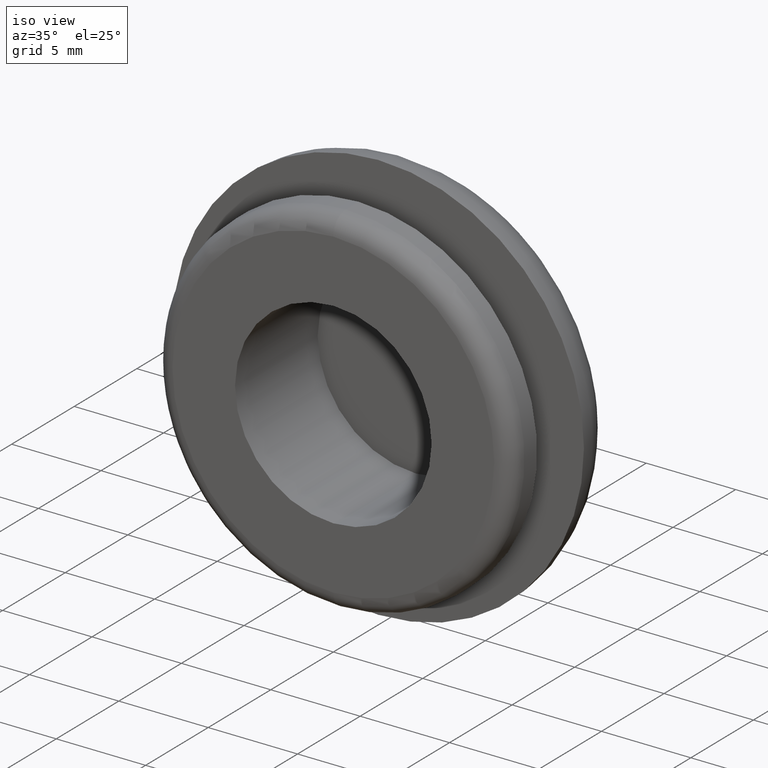
[diagram: clean part render]
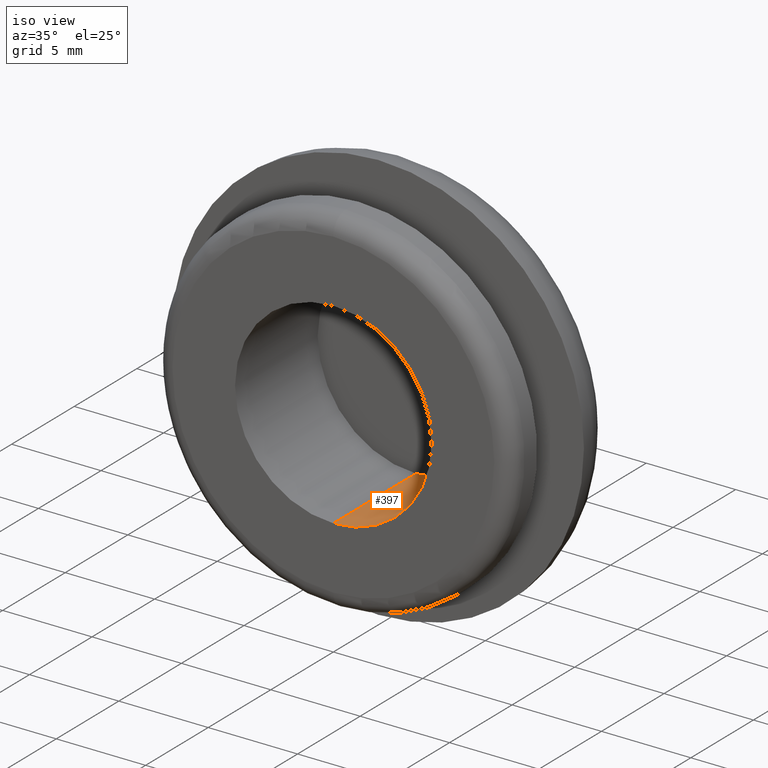
[diagram: same view with one face highlighted and labeled with its STEP entity id]
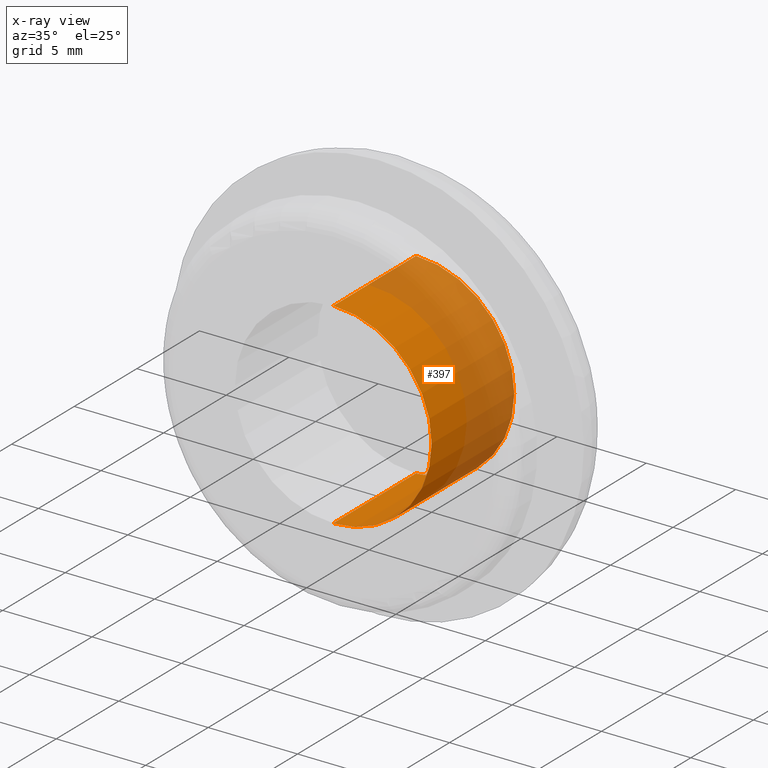
[diagram: x-ray of the same camera — body ghosted, the highlighted face saturated]
A machine part, iso view. The second image highlights one B-rep face of the part: STEP entity #397.
The next image is the same camera in x-ray: the body ghosted, the highlighted face saturated — about 52% of this face is hidden behind the body in this view.
In plain terms, the highlighted cylindrical surface (partial cylindrical patch) has radius 5.5 mm, axis along (0, -1, 0).
Its self-contained STEP definition (entity closure, byte-faithful):
#13 = VERTEX_POINT ( 'NONE', #604 ) ;
#18 = EDGE_CURVE ( 'NONE', #155, #552, #526, .T. ) ;
#36 = CARTESIAN_POINT ( 'NONE',  ( 0.0000000000000000000, 6.599999999999999600, -3.061515884555945100E-016 ) ) ;
#58 = ORIENTED_EDGE ( 'NONE', *, *, #597, .F. ) ;
#74 = EDGE_LOOP ( 'NONE', ( #58, #186, #253, #474 ) ) ;
#100 = DIRECTION ( 'NONE',  ( 0.0000000000000000000, -1.000000000000000000, 0.0000000000000000000 ) ) ;
#143 = DIRECTION ( 'NONE',  ( 0.0000000000000000000, -1.000000000000000000, 0.0000000000000000000 ) ) ;
#155 = VERTEX_POINT ( 'NONE', #490 ) ;
#165 = DIRECTION ( 'NONE',  ( 0.0000000000000000000, -1.000000000000000000, 0.0000000000000000000 ) ) ;
#172 = DIRECTION ( 'NONE',  ( 0.0000000000000000000, 0.0000000000000000000, -1.000000000000000000 ) ) ;
#184 = AXIS2_PLACEMENT_3D ( 'NONE', #36, #445, #303 ) ;
#186 = ORIENTED_EDGE ( 'NONE', *, *, #18, .F. ) ;
#196 = CARTESIAN_POINT ( 'NONE',  ( 0.0000000000000000000, -1.010300241903460100E-015, -3.061515884555945100E-016 ) ) ;
#197 = AXIS2_PLACEMENT_3D ( 'NONE', #196, #100, #361 ) ;
#217 = AXIS2_PLACEMENT_3D ( 'NONE', #223, #280, #172 ) ;
#223 = CARTESIAN_POINT ( 'NONE',  ( 0.0000000000000000000, 0.0000000000000000000, -3.061515884555945100E-016 ) ) ;
#243 = VERTEX_POINT ( 'NONE', #535 ) ;
#252 = EDGE_CURVE ( 'NONE', #243, #13, #373, .T. ) ;
#253 = ORIENTED_EDGE ( 'NONE', *, *, #332, .T. ) ;
#280 = DIRECTION ( 'NONE',  ( 0.0000000000000000000, -1.000000000000000000, 0.0000000000000000000 ) ) ;
#303 = DIRECTION ( 'NONE',  ( 0.0000000000000000000, 0.0000000000000000000, -1.000000000000000000 ) ) ;
#323 = VECTOR ( 'NONE', #143, 1000.000000000000000 ) ;
#332 = EDGE_CURVE ( 'NONE', #155, #243, #337, .T. ) ;
#337 = LINE ( 'NONE', #538, #359 ) ;
#359 = VECTOR ( 'NONE', #165, 1000.000000000000000 ) ;
#361 = DIRECTION ( 'NONE',  ( 0.0000000000000000000, 0.0000000000000000000, -1.000000000000000000 ) ) ;
#373 = CIRCLE ( 'NONE', #197, 5.500000000000000000 ) ;
#397 = ADVANCED_FACE ( 'NONE', ( #522 ), #632, .F. ) ;
#430 = LINE ( 'NONE', #498, #323 ) ;
#445 = DIRECTION ( 'NONE',  ( 0.0000000000000000000, -1.000000000000000000, 0.0000000000000000000 ) ) ;
#474 = ORIENTED_EDGE ( 'NONE', *, *, #252, .T. ) ;
#490 = CARTESIAN_POINT ( 'NONE',  ( 0.0000000000000000000, 6.599999999999999600, -5.500000000000000000 ) ) ;
#498 = CARTESIAN_POINT ( 'NONE',  ( 6.735557395310442000E-016, 0.0000000000000000000, 5.500000000000000000 ) ) ;
#522 = FACE_OUTER_BOUND ( 'NONE', #74, .T. ) ;
#526 = CIRCLE ( 'NONE', #184, 5.500000000000000000 ) ;
#535 = CARTESIAN_POINT ( 'NONE',  ( 0.0000000000000000000, -1.010300241903460100E-015, -5.500000000000000000 ) ) ;
#538 = CARTESIAN_POINT ( 'NONE',  ( 0.0000000000000000000, 0.0000000000000000000, -5.500000000000000000 ) ) ;
#552 = VERTEX_POINT ( 'NONE', #637 ) ;
#597 = EDGE_CURVE ( 'NONE', #552, #13, #430, .T. ) ;
#604 = CARTESIAN_POINT ( 'NONE',  ( 6.735557395310442000E-016, -1.010300241903460100E-015, 5.500000000000000000 ) ) ;
#632 = CYLINDRICAL_SURFACE ( 'NONE', #217, 5.500000000000000000 ) ;
#637 = CARTESIAN_POINT ( 'NONE',  ( 6.735557395310442000E-016, 6.599999999999999600, 5.500000000000000000 ) ) ;